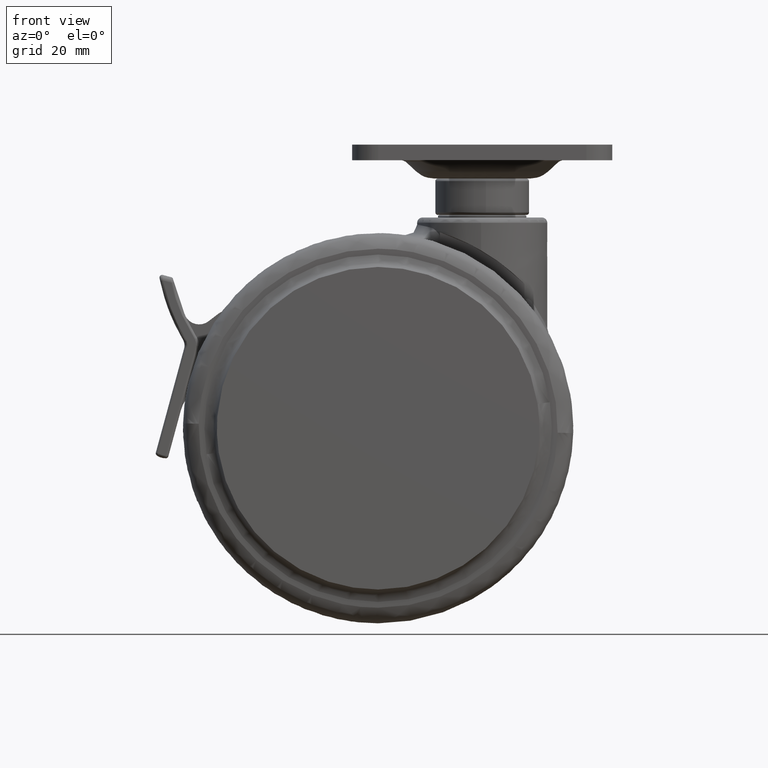
[diagram: clean part render]
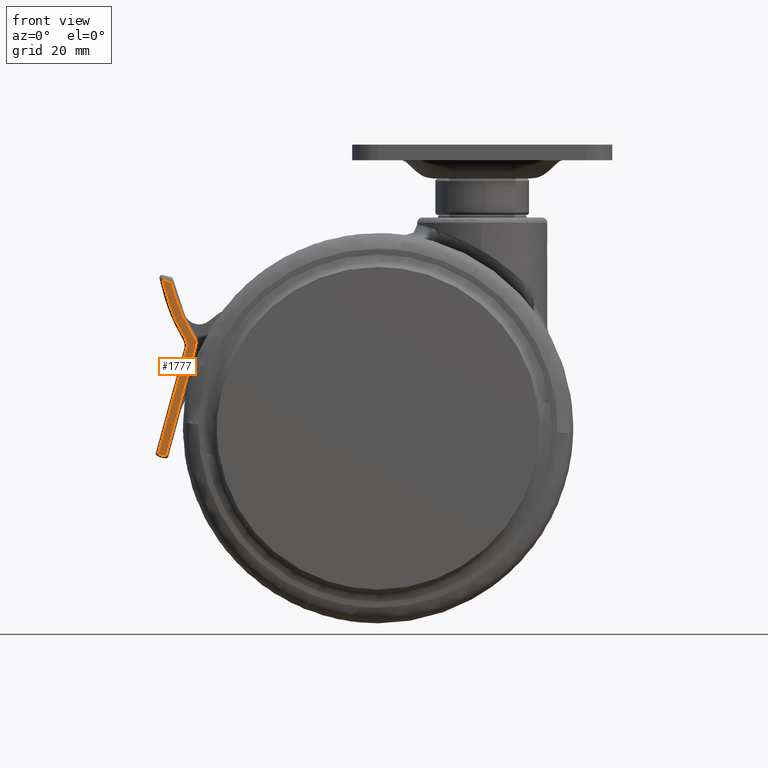
[diagram: same view with one face highlighted and labeled with its STEP entity id]
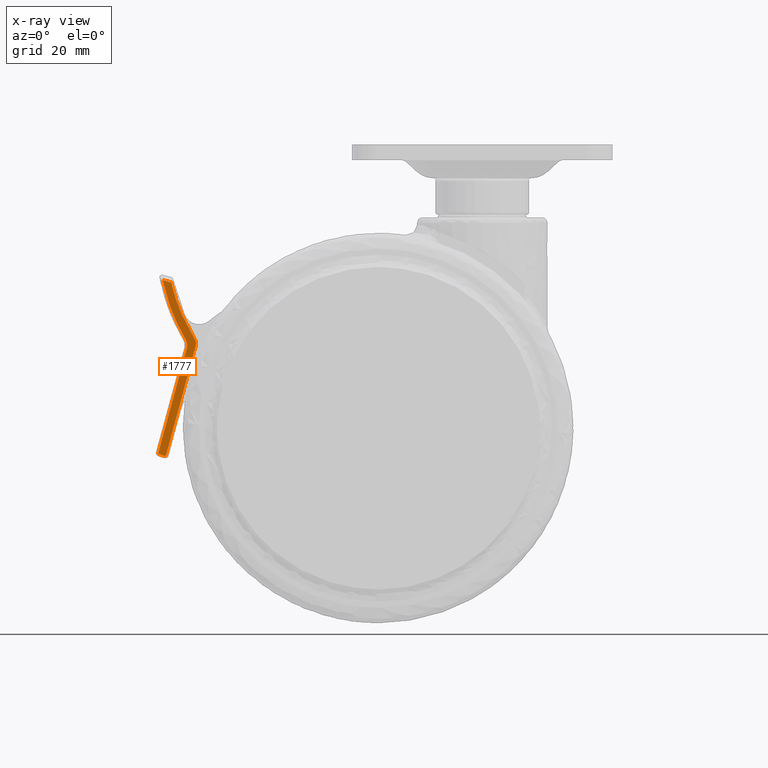
[diagram: x-ray of the same camera — body ghosted, the highlighted face saturated]
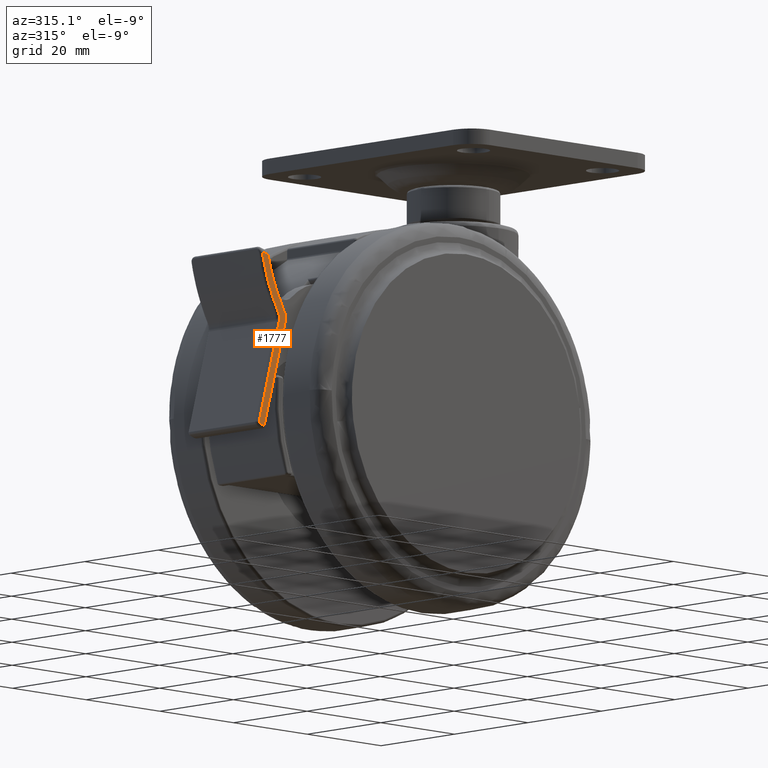
[diagram: same view with one face highlighted and labeled with its STEP entity id]
A machine part, front view. The second image highlights one B-rep face of the part: STEP entity #1777.
The next image is the same camera in x-ray: the body ghosted, the highlighted face saturated — about 0% of this face is hidden behind the body in this view.
A second angle (auxiliary view) of the same face is appended — the face is thin or edge-on in the first view.
In plain terms, the highlighted face is a freeform B-spline surface patch.
Its self-contained STEP definition (entity closure, byte-faithful):
#285=CARTESIAN_POINT('',(-62.249221638434200,-9.500000000000000,-45.343631538079897));
#286=VERTEX_POINT('',#285);
#314=CARTESIAN_POINT('',(-60.813245742523698,-9.500000000000000,-45.779408832745787));
#315=VERTEX_POINT('',#314);
#329=CARTESIAN_POINT('',(-62.249221638434207,-9.500000000000000,-45.343631538079933));
#330=CARTESIAN_POINT('',(-61.599788767367208,-9.500000000000000,-45.787423276645058));
#331=CARTESIAN_POINT('',(-60.813245742523698,-9.500000000000000,-45.779408832745759));
#339=(BOUNDED_CURVE()B_SPLINE_CURVE(2,(#329,#330,#331),.UNSPECIFIED.,.F.,.U.)CURVE()GEOMETRIC_REPRESENTATION_ITEM()QUASI_UNIFORM_CURVE()RATIONAL_B_SPLINE_CURVE((1.0,0.953898765610224,1.0))REPRESENTATION_ITEM(''));
#340=EDGE_CURVE('',#286,#315,#339,.T.);
#552=CARTESIAN_POINT('',(-59.784241541020997,-9.500000000000000,-12.503799321910140));
#553=VERTEX_POINT('',#552);
#567=CARTESIAN_POINT('',(-55.233280073166398,-9.500000000000000,-23.407080692603351));
#568=VERTEX_POINT('',#567);
#569=CARTESIAN_POINT('',(-55.233280073166362,-9.500000000000000,-23.407080692603330));
#570=CARTESIAN_POINT('',(-58.415648810021146,-9.500000000000000,-18.333969389069829));
#571=CARTESIAN_POINT('',(-59.784241541020982,-9.500000000000000,-12.503799321910151));
#579=(BOUNDED_CURVE()B_SPLINE_CURVE(2,(#569,#570,#571),.UNSPECIFIED.,.F.,.U.)CURVE()GEOMETRIC_REPRESENTATION_ITEM()QUASI_UNIFORM_CURVE()RATIONAL_B_SPLINE_CURVE((1.0,0.986444310400309,1.0))REPRESENTATION_ITEM(''));
#580=EDGE_CURVE('',#568,#553,#579,.T.);
#627=CARTESIAN_POINT('',(-56.785639218078401,-9.500000000000000,-25.240602067901001));
#628=VERTEX_POINT('',#627);
#644=CARTESIAN_POINT('',(-56.785639218078401,-9.500000000000000,-25.240602067901001));
#645=CARTESIAN_POINT('',(-62.249221638434200,-9.500000000000000,-45.343631538079897));
#646=QUASI_UNIFORM_CURVE('',1,(#644,#645),.UNSPECIFIED.,.F.,.U.);
#647=EDGE_CURVE('',#628,#286,#646,.T.);
#1010=CARTESIAN_POINT('',(-57.044303200085700,-9.500000000000000,-23.315671872337798));
#1011=VERTEX_POINT('',#1010);
#1027=CARTESIAN_POINT('',(-57.044303200085679,-9.500000000000000,-23.315671872337791));
#1028=CARTESIAN_POINT('',(-56.509243990696390,-9.500000000000000,-24.223617061730891));
#1029=CARTESIAN_POINT('',(-56.785639218078373,-9.500000000000000,-25.240602067901008));
#1037=(BOUNDED_CURVE()B_SPLINE_CURVE(2,(#1027,#1028,#1029),.UNSPECIFIED.,.F.,.U.)CURVE()GEOMETRIC_REPRESENTATION_ITEM()QUASI_UNIFORM_CURVE()RATIONAL_B_SPLINE_CURVE((1.0,0.921471360089310,1.0))REPRESENTATION_ITEM(''));
#1038=EDGE_CURVE('',#1011,#628,#1037,.T.);
#1320=CARTESIAN_POINT('',(-61.419077750071203,-9.500000000000000,-12.065746279937921));
#1321=VERTEX_POINT('',#1320);
#1337=CARTESIAN_POINT('',(-61.419077750071231,-9.500000000000000,-12.065746279937930));
#1338=CARTESIAN_POINT('',(-60.148937036164391,-9.500000000000000,-18.047400049650733));
#1339=CARTESIAN_POINT('',(-57.044303200085700,-9.500000000000000,-23.315671872337770));
#1347=(BOUNDED_CURVE()B_SPLINE_CURVE(2,(#1337,#1338,#1339),.UNSPECIFIED.,.F.,.U.)CURVE()GEOMETRIC_REPRESENTATION_ITEM()QUASI_UNIFORM_CURVE()RATIONAL_B_SPLINE_CURVE((1.0,0.986963966182467,1.0))REPRESENTATION_ITEM(''));
#1348=EDGE_CURVE('',#1321,#1011,#1347,.T.);
#1708=CARTESIAN_POINT('',(-59.784241541020997,-9.500000000000000,-12.503799321910140));
#1709=CARTESIAN_POINT('',(-61.419077750071203,-9.500000000000000,-12.065746279937921));
#1710=QUASI_UNIFORM_CURVE('',1,(#1708,#1709),.UNSPECIFIED.,.F.,.U.);
#1711=EDGE_CURVE('',#553,#1321,#1710,.T.);
#1744=CARTESIAN_POINT('',(-62.611118723574627,-9.500000000000000,-10.381748900768789));
#1745=CARTESIAN_POINT('',(-54.642137188142350,-9.500000000000000,-10.381748900768789));
#1746=CARTESIAN_POINT('',(-62.611118723574627,-9.500000000000000,-47.463407116185820));
#1747=CARTESIAN_POINT('',(-54.642137188142350,-9.500000000000000,-47.463407116185820));
#1748=B_SPLINE_SURFACE_WITH_KNOTS('',1,1,((#1744,#1746),(#1745,#1747)),.UNSPECIFIED.,.F.,.F.,.U.,(2,2),(2,2),(0.0,7.968981535432277),(0.0,37.081658215417029),.UNSPECIFIED.);
#1749=ORIENTED_EDGE('',*,*,#1711,.T.);
#1750=ORIENTED_EDGE('',*,*,#1348,.T.);
#1751=ORIENTED_EDGE('',*,*,#1038,.T.);
#1752=ORIENTED_EDGE('',*,*,#647,.T.);
#1753=ORIENTED_EDGE('',*,*,#340,.T.);
#1754=CARTESIAN_POINT('',(-55.056468019977302,-9.500000000000000,-24.597579163910449));
#1755=VERTEX_POINT('',#1754);
#1756=CARTESIAN_POINT('',(-60.813245742523698,-9.500000000000000,-45.779408832745787));
#1757=CARTESIAN_POINT('',(-55.056468019977302,-9.500000000000000,-24.597579163910449));
#1758=QUASI_UNIFORM_CURVE('',1,(#1756,#1757),.UNSPECIFIED.,.F.,.U.);
#1759=EDGE_CURVE('',#315,#1755,#1758,.T.);
#1760=ORIENTED_EDGE('',*,*,#1759,.T.);
#1761=CARTESIAN_POINT('',(-55.056468019977338,-9.500000000000000,-24.597579163910439));
#1762=CARTESIAN_POINT('',(-54.884168508116780,-9.500000000000000,-23.963610112446133));
#1763=CARTESIAN_POINT('',(-55.233280073166412,-9.500000000000000,-23.407080692603358));
#1771=(BOUNDED_CURVE()B_SPLINE_CURVE(2,(#1761,#1762,#1763),.UNSPECIFIED.,.F.,.U.)CURVE()GEOMETRIC_REPRESENTATION_ITEM()QUASI_UNIFORM_CURVE()RATIONAL_B_SPLINE_CURVE((1.0,0.915996778722051,1.0))REPRESENTATION_ITEM(''));
#1772=EDGE_CURVE('',#1755,#568,#1771,.T.);
#1773=ORIENTED_EDGE('',*,*,#1772,.T.);
#1774=ORIENTED_EDGE('',*,*,#580,.T.);
#1775=EDGE_LOOP('',(#1749,#1750,#1751,#1752,#1753,#1760,#1773,#1774));
#1776=FACE_OUTER_BOUND('',#1775,.T.);
#1777=ADVANCED_FACE('',(#1776),#1748,.F.);